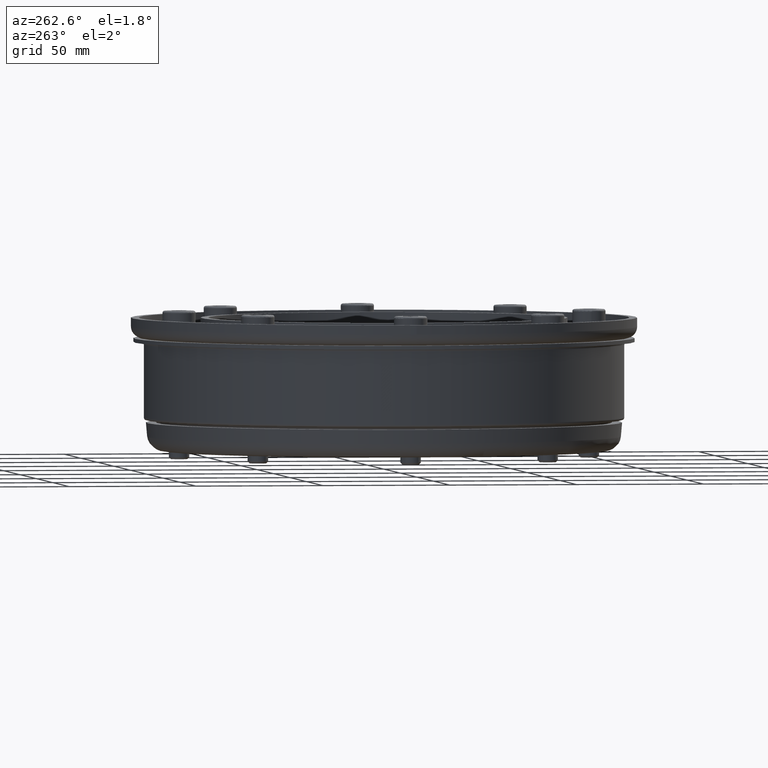
[diagram: clean part render]
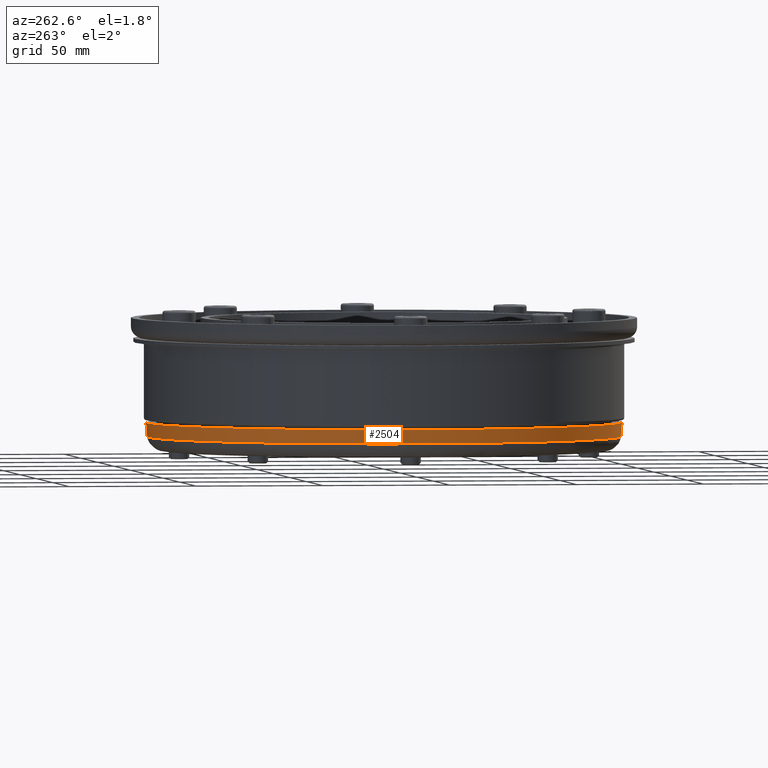
[diagram: same view with one face highlighted and labeled with its STEP entity id]
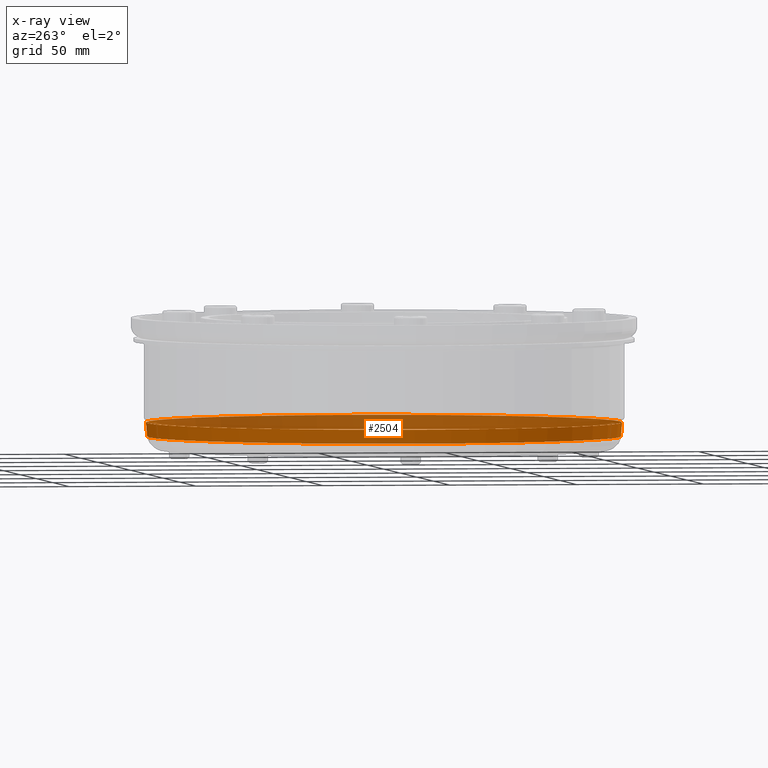
[diagram: x-ray of the same camera — body ghosted, the highlighted face saturated]
A machine part, auxiliary view. The second image highlights one B-rep face of the part: STEP entity #2504.
The next image is the same camera in x-ray: the body ghosted, the highlighted face saturated — about 45% of this face is hidden behind the body in this view.
In plain terms, the highlighted conical surface has half-angle 5 deg.
Its self-contained STEP definition (entity closure, byte-faithful):
#384=FACE_OUTER_BOUND('',#587,.T.);
#587=EDGE_LOOP('',(#2258,#2259,#2260,#2261,#2262,#2263,#2264));
#698=LINE('',#4552,#797);
#797=VECTOR('',#3789,92.6885796772253);
#1013=CIRCLE('',#2937,93.1260229948549);
#1014=CIRCLE('',#2938,93.1260229948549);
#1033=CIRCLE('',#2966,92.6428288405157);
#1037=CIRCLE('',#2970,92.6428288405157);
#1038=CIRCLE('',#2971,92.6428288405157);
#1251=VERTEX_POINT('',#4480);
#1252=VERTEX_POINT('',#4481);
#1271=VERTEX_POINT('',#4537);
#1272=VERTEX_POINT('',#4538);
#1275=VERTEX_POINT('',#4545);
#1581=EDGE_CURVE('',#1251,#1252,#1013,.T.);
#1582=EDGE_CURVE('',#1252,#1251,#1014,.T.);
#1609=EDGE_CURVE('',#1271,#1272,#1033,.T.);
#1613=EDGE_CURVE('',#1272,#1275,#1037,.T.);
#1614=EDGE_CURVE('',#1275,#1271,#1038,.T.);
#1616=EDGE_CURVE('',#1252,#1275,#698,.T.);
#2258=ORIENTED_EDGE('',*,*,#1581,.T.);
#2259=ORIENTED_EDGE('',*,*,#1616,.T.);
#2260=ORIENTED_EDGE('',*,*,#1613,.F.);
#2261=ORIENTED_EDGE('',*,*,#1609,.F.);
#2262=ORIENTED_EDGE('',*,*,#1614,.F.);
#2263=ORIENTED_EDGE('',*,*,#1616,.F.);
#2264=ORIENTED_EDGE('',*,*,#1582,.T.);
#2391=CONICAL_SURFACE('',#2974,92.6885796772253,0.0872664625997168);
#2504=ADVANCED_FACE('',(#384),#2391,.T.);
#2937=AXIS2_PLACEMENT_3D('',#4482,#3705,#3706);
#2938=AXIS2_PLACEMENT_3D('',#4483,#3707,#3708);
#2966=AXIS2_PLACEMENT_3D('',#4539,#3771,#3772);
#2970=AXIS2_PLACEMENT_3D('',#4546,#3779,#3780);
#2971=AXIS2_PLACEMENT_3D('',#4547,#3781,#3782);
#2974=AXIS2_PLACEMENT_3D('',#4551,#3787,#3788);
#3705=DIRECTION('center_axis',(0.,-1.,0.));
#3706=DIRECTION('ref_axis',(-1.,-1.78073253771772E-16,0.));
#3707=DIRECTION('center_axis',(0.,-1.,0.));
#3708=DIRECTION('ref_axis',(-1.,-1.78073253771772E-16,0.));
#3771=DIRECTION('center_axis',(1.70770671609604E-16,-1.,-2.99597669490532E-18));
#3772=DIRECTION('ref_axis',(1.,1.70770671609604E-16,0.));
#3779=DIRECTION('center_axis',(1.70770671609604E-16,-1.,-2.99597669490532E-18));
#3780=DIRECTION('ref_axis',(1.,1.70770671609604E-16,0.));
#3781=DIRECTION('center_axis',(1.70770671609604E-16,-1.,-2.99597669490532E-18));
#3782=DIRECTION('ref_axis',(1.,1.70770671609604E-16,0.));
#3787=DIRECTION('center_axis',(-1.74168219173751E-16,1.,0.));
#3788=DIRECTION('ref_axis',(-1.,-1.78073253771772E-16,0.));
#3789=DIRECTION('',(-0.0871557427476584,-0.996194698091746,1.0673500138323E-17));
#4480=CARTESIAN_POINT('',(-58.0760229948549,7.,0.));
#4481=CARTESIAN_POINT('',(128.176022994855,7.00000000000003,-1.14046485977972E-14));
#4482=CARTESIAN_POINT('Origin',(35.05,7.00000000000002,0.));
#4483=CARTESIAN_POINT('Origin',(35.05,7.00000000000002,0.));
#4537=CARTESIAN_POINT('',(-57.5928288405157,1.47706554351405,-2.26909487606987E-14));
#4538=CARTESIAN_POINT('',(35.05,1.47706554351407,-92.6428288405157));
#4539=CARTESIAN_POINT('Origin',(35.05,1.47706554351407,-1.13454743803494E-14));
#4545=CARTESIAN_POINT('',(127.692828840516,1.47706554351408,-1.13454743803494E-14));
#4546=CARTESIAN_POINT('Origin',(35.05,1.47706554351407,-1.13454743803494E-14));
#4547=CARTESIAN_POINT('Origin',(35.05,1.47706554351407,-1.13454743803494E-14));
#4551=CARTESIAN_POINT('Origin',(35.05,2.00000000000002,0.));
#4552=CARTESIAN_POINT('',(127.738579677225,2.00000000000003,-1.13510772419228E-14));